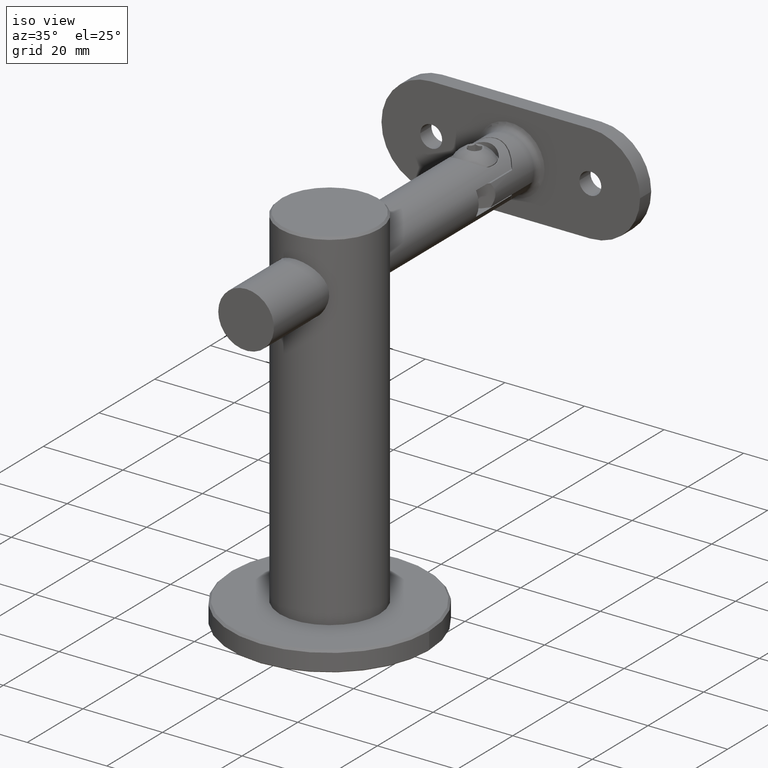
[diagram: clean part render]
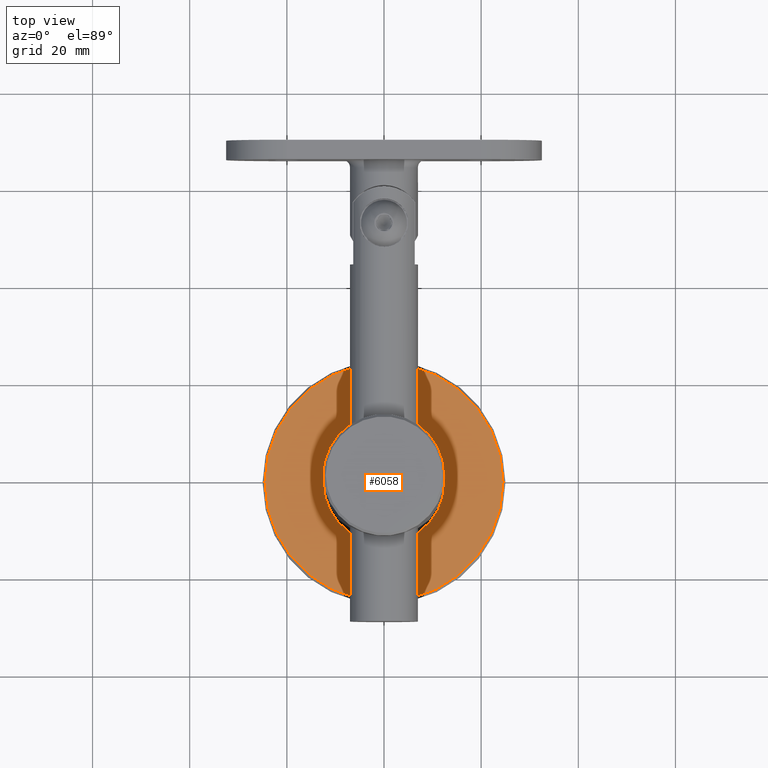
[diagram: tour spotlight — one face highlighted and labeled with its STEP entity id]
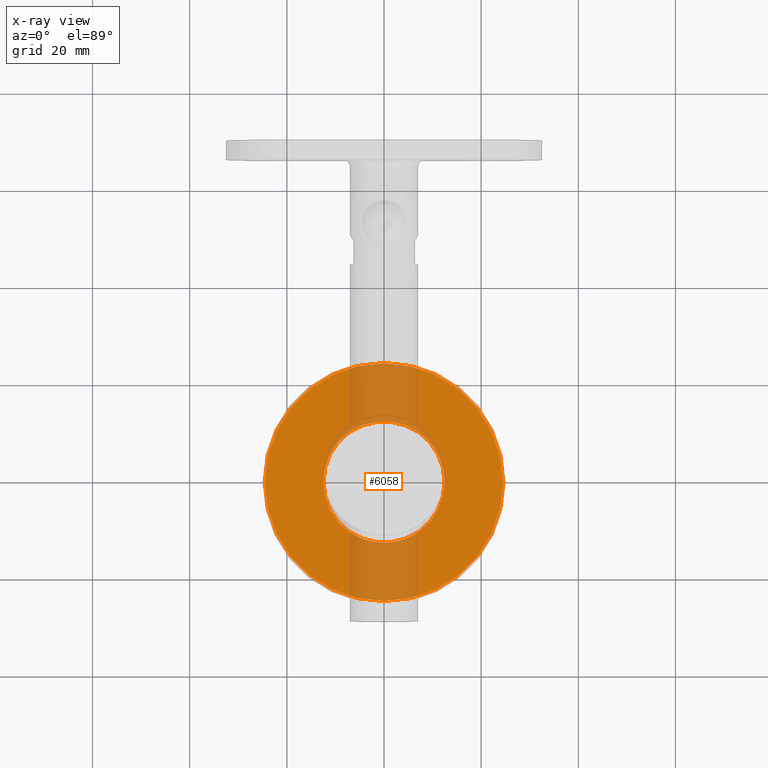
[diagram: x-ray of the same camera — body ghosted, this tour face saturated]
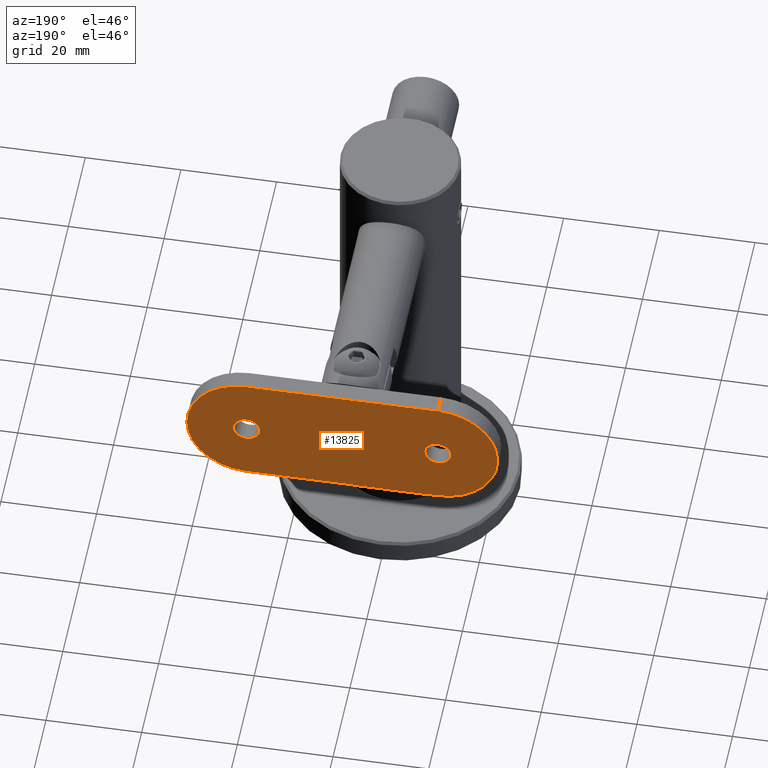
[diagram: tour spotlight — one face highlighted and labeled with its STEP entity id]
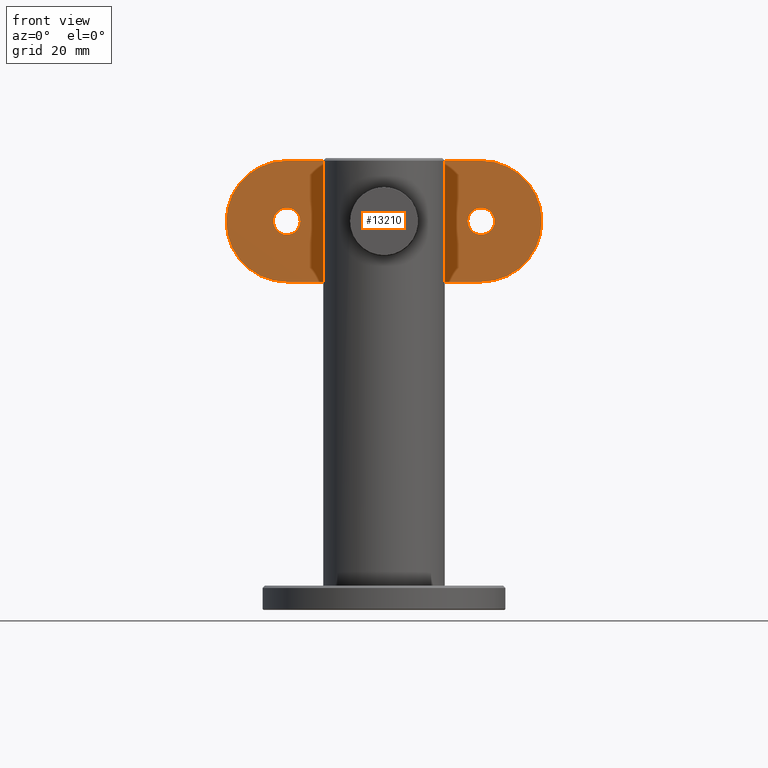
[diagram: tour spotlight — one face highlighted and labeled with its STEP entity id]
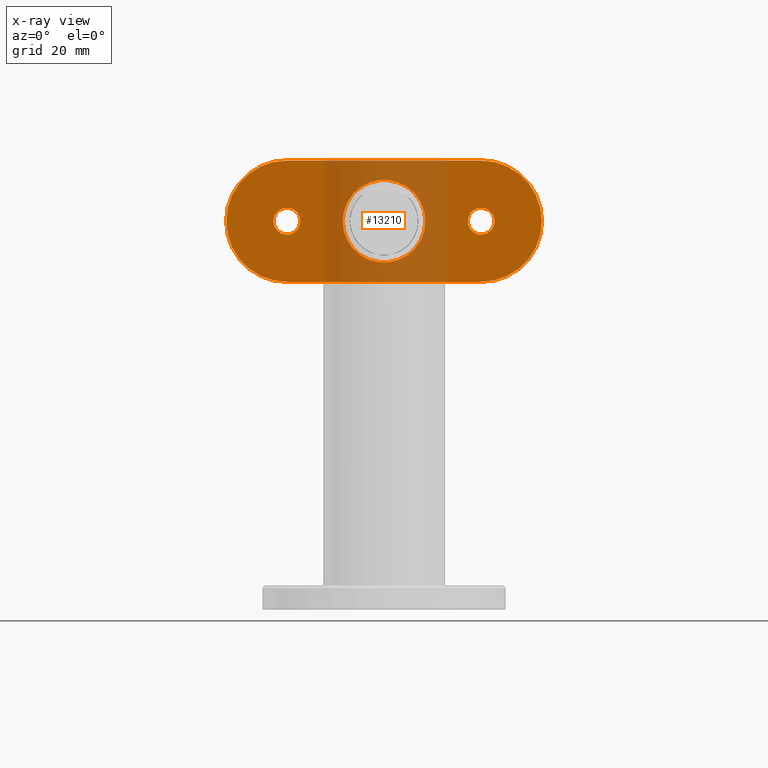
[diagram: x-ray of the same camera — body ghosted, this tour face saturated]
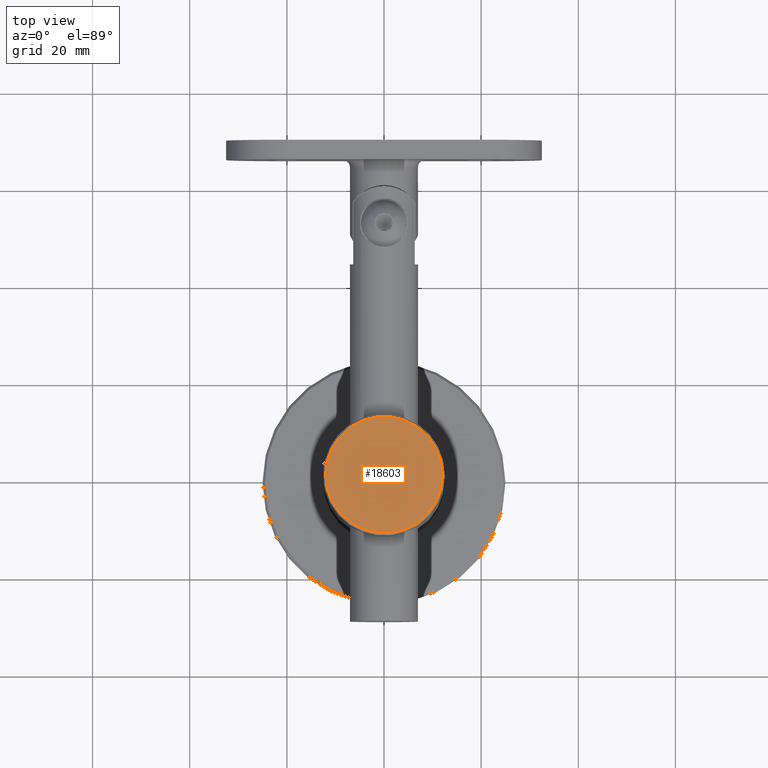
[diagram: tour spotlight — one face highlighted and labeled with its STEP entity id]
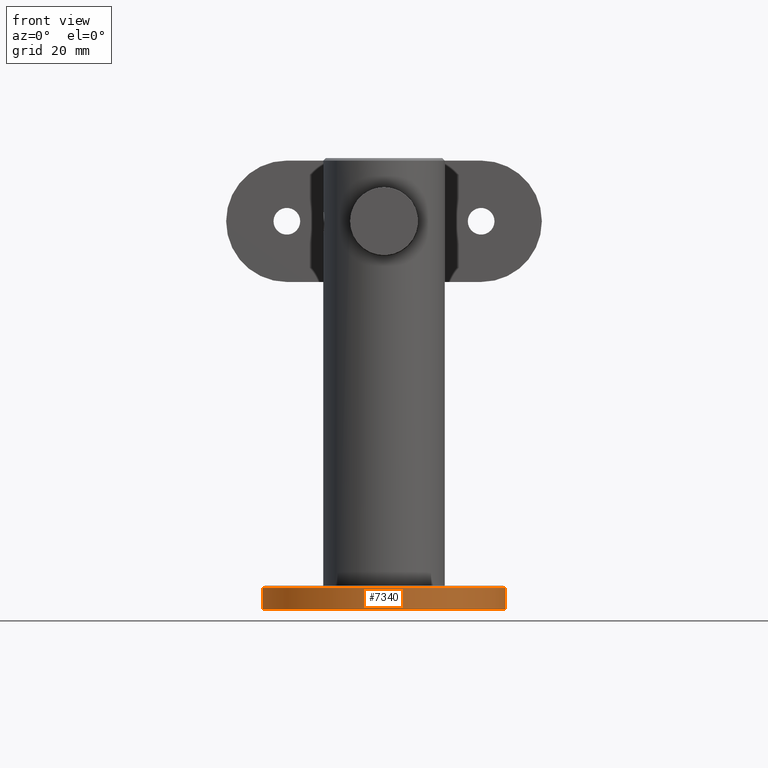
[diagram: tour spotlight — one face highlighted and labeled with its STEP entity id]
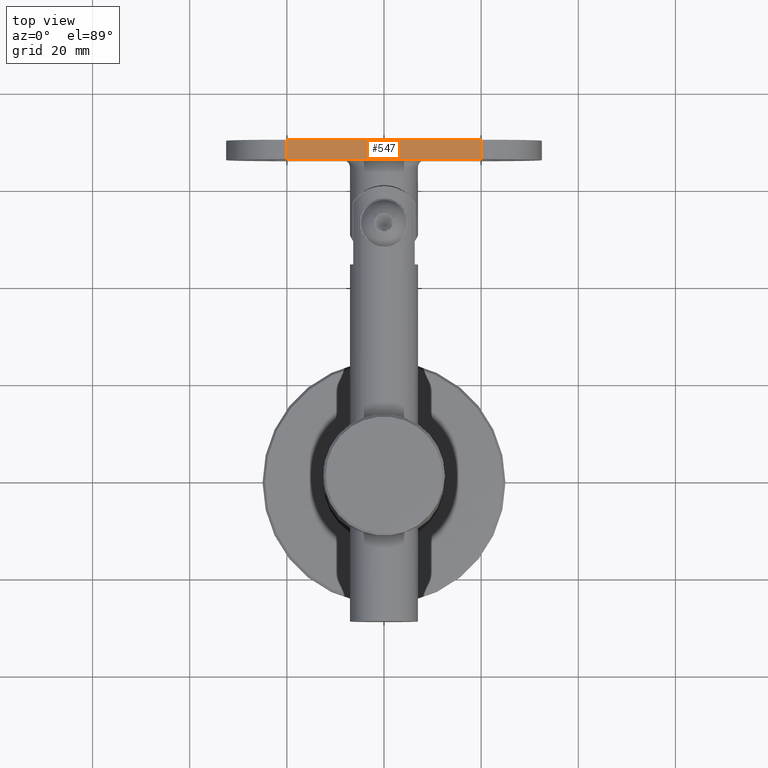
[diagram: tour spotlight — one face highlighted and labeled with its STEP entity id]
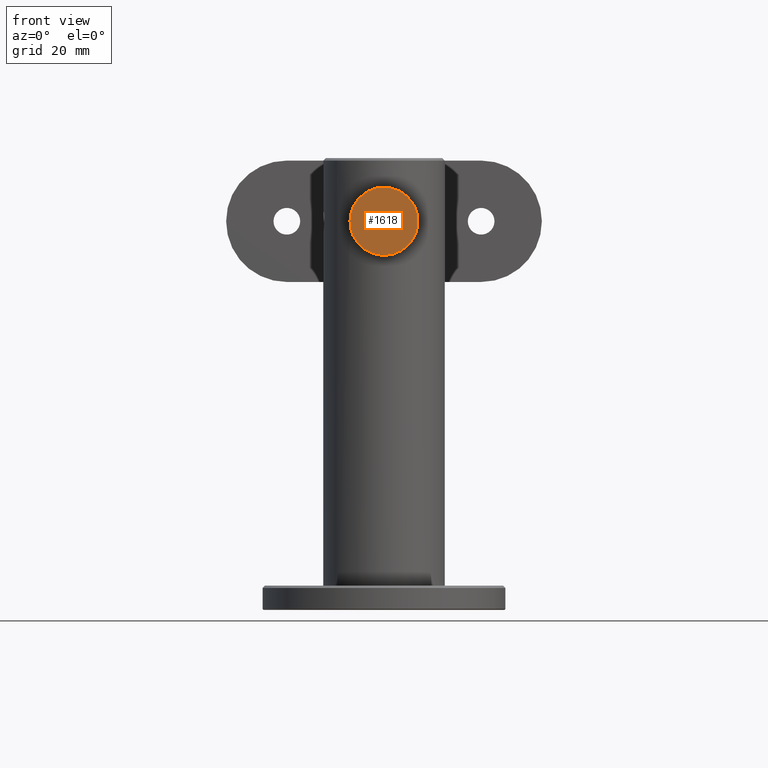
[diagram: tour spotlight — one face highlighted and labeled with its STEP entity id]
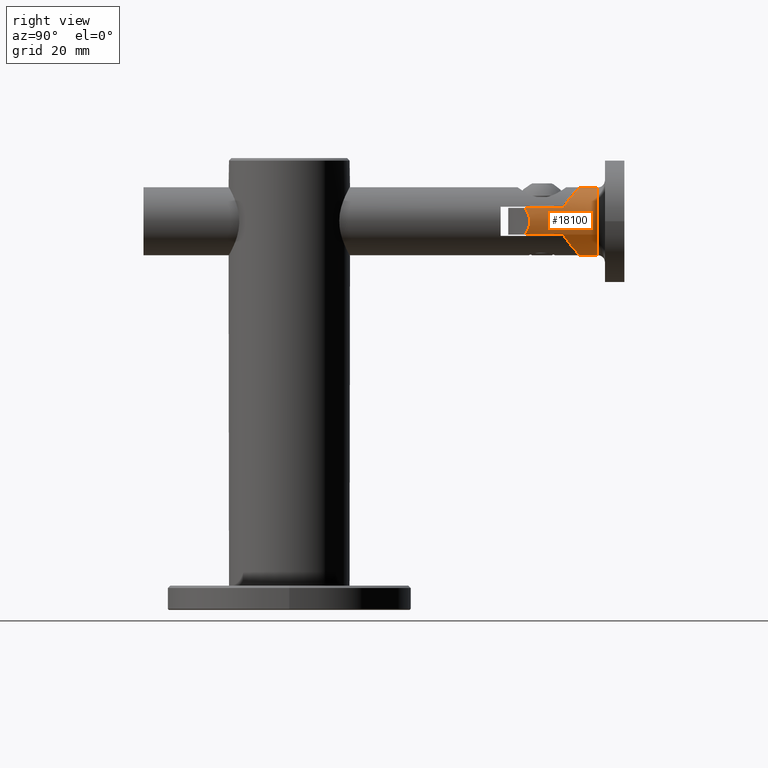
[diagram: tour spotlight — one face highlighted and labeled with its STEP entity id]
A machine part: a face-by-face anatomy tour. The part has 314 B-rep faces; the first image is the clean iso view, then the 8 largest visible faces are spotlighted one at a time (largest first), each with its STEP entity span.

Face 1 — top view, entity #6058. An x-ray twin of the same camera follows (body ghosted, this face saturated) — the face is partly hidden behind the body. In plain terms, the highlighted planar face has unit normal (0, 0, 1).
Definition (entity closure, byte-faithful):
#1257 = FACE_BOUND ( 'NONE', #5096, .T. ) ;
#1678 = CARTESIAN_POINT ( 'NONE',  ( 0.0000000000000000000, 0.0000000000000000000, 5.000000000000004400 ) ) ;
#1976 = ORIENTED_EDGE ( 'NONE', *, *, #12818, .F. ) ;
#3321 = AXIS2_PLACEMENT_3D ( 'NONE', #1678, #13471, #8925 ) ;
#5077 = EDGE_CURVE ( 'NONE', #10716, #10716, #17661, .T. ) ;
#5086 = VERTEX_POINT ( 'NONE', #6688 ) ;
#5096 = EDGE_LOOP ( 'NONE', ( #1976 ) ) ;
#6058 = ADVANCED_FACE ( 'NONE', ( #13690, #1257 ), #10800, .T. ) ;
#6688 = CARTESIAN_POINT ( 'NONE',  ( 12.50000000000000000, 0.0000000000000000000, 5.000000000000004400 ) ) ;
#8709 = CIRCLE ( 'NONE', #3321, 12.50000000000000000 ) ;
#8925 = DIRECTION ( 'NONE',  ( 1.000000000000000000, 0.0000000000000000000, 0.0000000000000000000 ) ) ;
#9427 = DIRECTION ( 'NONE',  ( 1.000000000000000000, 0.0000000000000000000, -0.0000000000000000000 ) ) ;
#9556 = CARTESIAN_POINT ( 'NONE',  ( 0.0000000000000000000, 0.0000000000000000000, 5.000000000000000000 ) ) ;
#9725 = DIRECTION ( 'NONE',  ( 1.000000000000000000, 0.0000000000000000000, 0.0000000000000000000 ) ) ;
#9981 = CARTESIAN_POINT ( 'NONE',  ( 0.0000000000000000000, 0.0000000000000000000, 5.000000000000000000 ) ) ;
#10235 = EDGE_LOOP ( 'NONE', ( #12556 ) ) ;
#10716 = VERTEX_POINT ( 'NONE', #14295 ) ;
#10800 = PLANE ( 'NONE',  #15425 ) ;
#11424 = DIRECTION ( 'NONE',  ( 0.0000000000000000000, 0.0000000000000000000, 1.000000000000000000 ) ) ;
#12556 = ORIENTED_EDGE ( 'NONE', *, *, #5077, .T. ) ;
#12818 = EDGE_CURVE ( 'NONE', #5086, #5086, #8709, .T. ) ;
#13471 = DIRECTION ( 'NONE',  ( 0.0000000000000000000, 0.0000000000000000000, 1.000000000000000000 ) ) ;
#13690 = FACE_OUTER_BOUND ( 'NONE', #10235, .T. ) ;
#14295 = CARTESIAN_POINT ( 'NONE',  ( 24.49999999999998200, 0.0000000000000000000, 5.000000000000000000 ) ) ;
#14680 = AXIS2_PLACEMENT_3D ( 'NONE', #9981, #11424, #9725 ) ;
#15425 = AXIS2_PLACEMENT_3D ( 'NONE', #9556, #16912, #9427 ) ;
#16912 = DIRECTION ( 'NONE',  ( 0.0000000000000000000, 0.0000000000000000000, 1.000000000000000000 ) ) ;
#17661 = CIRCLE ( 'NONE', #14680, 24.49999999999998200 ) ;

Face 2 — auxiliary view, entity #13825. In plain terms, the highlighted planar face has unit normal (-0, -1, -0).
Definition (entity closure, byte-faithful):
#248 = CIRCLE ( 'NONE', #3572, 12.49999999999999600 ) ;
#1141 = AXIS2_PLACEMENT_3D ( 'NONE', #14740, #14675, #2686 ) ;
#1383 = CARTESIAN_POINT ( 'NONE',  ( 12.50000000000000000, 3.999999999999996400, 32.50000000000000000 ) ) ;
#1580 = PLANE ( 'NONE',  #6205 ) ;
#1769 = VERTEX_POINT ( 'NONE', #9964 ) ;
#1872 = VERTEX_POINT ( 'NONE', #12111 ) ;
#2070 = DIRECTION ( 'NONE',  ( -0.0000000000000000000, 1.000000000000000000, -0.0000000000000000000 ) ) ;
#2240 = DIRECTION ( 'NONE',  ( -0.0000000000000000000, -0.0000000000000000000, -1.000000000000000000 ) ) ;
#2686 = DIRECTION ( 'NONE',  ( 8.881784197001252300E-016, 0.0000000000000000000, -1.000000000000000000 ) ) ;
#3122 = ORIENTED_EDGE ( 'NONE', *, *, #15243, .T. ) ;
#3302 = CARTESIAN_POINT ( 'NONE',  ( 0.0000000000000000000, 3.999999999999996400, -20.00000000000000400 ) ) ;
#3572 = AXIS2_PLACEMENT_3D ( 'NONE', #14278, #3664, #18822 ) ;
#3664 = DIRECTION ( 'NONE',  ( -0.0000000000000000000, 1.000000000000000000, -0.0000000000000000000 ) ) ;
#3680 = DIRECTION ( 'NONE',  ( 0.0000000000000000000, 1.000000000000000000, 0.0000000000000000000 ) ) ;
#3715 = ORIENTED_EDGE ( 'NONE', *, *, #5933, .T. ) ;
#3880 = CARTESIAN_POINT ( 'NONE',  ( 4.694321675334250400E-015, 3.999999999999996400, 20.00000000000000000 ) ) ;
#4465 = CARTESIAN_POINT ( 'NONE',  ( -12.50000000000000000, 3.999999999999996400, -20.00000000000000400 ) ) ;
#4577 = EDGE_CURVE ( 'NONE', #1872, #1769, #12747, .T. ) ;
#4677 = ORIENTED_EDGE ( 'NONE', *, *, #14876, .F. ) ;
#4906 = VERTEX_POINT ( 'NONE', #4465 ) ;
#5063 = CARTESIAN_POINT ( 'NONE',  ( -12.50000000000000000, 3.999999999999996400, 32.50000000000000000 ) ) ;
#5432 = CARTESIAN_POINT ( 'NONE',  ( 0.0000000000000000000, 3.999999999999996400, -32.50000000000000000 ) ) ;
#5933 = EDGE_CURVE ( 'NONE', #16187, #4906, #14157, .T. ) ;
#6205 = AXIS2_PLACEMENT_3D ( 'NONE', #1383, #12044, #15010 ) ;
#6274 = VERTEX_POINT ( 'NONE', #17282 ) ;
#6496 = DIRECTION ( 'NONE',  ( -0.0000000000000000000, 1.000000000000000000, -0.0000000000000000000 ) ) ;
#6565 = DIRECTION ( 'NONE',  ( 0.0000000000000000000, 0.0000000000000000000, -1.000000000000000000 ) ) ;
#6571 = DIRECTION ( 'NONE',  ( -0.0000000000000000000, -0.0000000000000000000, -1.000000000000000000 ) ) ;
#6577 = VERTEX_POINT ( 'NONE', #17777 ) ;
#7313 = ORIENTED_EDGE ( 'NONE', *, *, #10455, .F. ) ;
#7444 = EDGE_CURVE ( 'NONE', #16671, #1872, #11285, .T. ) ;
#7879 = CARTESIAN_POINT ( 'NONE',  ( 4.694321675334250400E-015, 3.999999999999996400, -20.00000000000000000 ) ) ;
#8321 = CARTESIAN_POINT ( 'NONE',  ( 4.694321675334250400E-015, 3.999999999999996400, 22.75000000000000000 ) ) ;
#8667 = CIRCLE ( 'NONE', #12222, 2.749999999999999100 ) ;
#8765 = VECTOR ( 'NONE', #2240, 1000.000000000000000 ) ;
#9258 = ORIENTED_EDGE ( 'NONE', *, *, #16749, .T. ) ;
#9336 = AXIS2_PLACEMENT_3D ( 'NONE', #18467, #2070, #6565 ) ;
#9465 = EDGE_LOOP ( 'NONE', ( #10498 ) ) ;
#9837 = FACE_OUTER_BOUND ( 'NONE', #16332, .T. ) ;
#9964 = CARTESIAN_POINT ( 'NONE',  ( 12.50000000000000000, 3.999999999999996400, -20.00000000000000400 ) ) ;
#9996 = VERTEX_POINT ( 'NONE', #8321 ) ;
#10254 = AXIS2_PLACEMENT_3D ( 'NONE', #3302, #6496, #18457 ) ;
#10455 = EDGE_CURVE ( 'NONE', #6577, #4906, #17872, .T. ) ;
#10498 = ORIENTED_EDGE ( 'NONE', *, *, #14487, .F. ) ;
#11285 = CIRCLE ( 'NONE', #9336, 12.50000000000000000 ) ;
#11595 = DIRECTION ( 'NONE',  ( 0.0000000000000000000, 0.0000000000000000000, 1.000000000000000000 ) ) ;
#11638 = ORIENTED_EDGE ( 'NONE', *, *, #4577, .T. ) ;
#11721 = CARTESIAN_POINT ( 'NONE',  ( 12.50000000000000000, 3.999999999999996400, 32.50000000000000000 ) ) ;
#11787 = ORIENTED_EDGE ( 'NONE', *, *, #7444, .T. ) ;
#12044 = DIRECTION ( 'NONE',  ( 0.0000000000000000000, -1.000000000000000000, 0.0000000000000000000 ) ) ;
#12111 = CARTESIAN_POINT ( 'NONE',  ( 12.50000000000000000, 3.999999999999996400, 20.00000000000000000 ) ) ;
#12222 = AXIS2_PLACEMENT_3D ( 'NONE', #7879, #3680, #15720 ) ;
#12747 = LINE ( 'NONE', #11721, #8765 ) ;
#13221 = CARTESIAN_POINT ( 'NONE',  ( 0.0000000000000000000, 3.999999999999996400, 32.50000000000000000 ) ) ;
#13635 = FACE_BOUND ( 'NONE', #16362, .T. ) ;
#13825 = ADVANCED_FACE ( 'NONE', ( #13635, #17342, #9837 ), #1580, .F. ) ;
#14157 = CIRCLE ( 'NONE', #10254, 12.49999999999999600 ) ;
#14278 = CARTESIAN_POINT ( 'NONE',  ( 0.0000000000000000000, 3.999999999999996400, -20.00000000000000400 ) ) ;
#14378 = DIRECTION ( 'NONE',  ( 0.0000000000000000000, 1.000000000000000000, 0.0000000000000000000 ) ) ;
#14487 = EDGE_CURVE ( 'NONE', #6274, #6274, #8667, .T. ) ;
#14675 = DIRECTION ( 'NONE',  ( -0.0000000000000000000, 1.000000000000000000, -0.0000000000000000000 ) ) ;
#14740 = CARTESIAN_POINT ( 'NONE',  ( 0.0000000000000000000, 3.999999999999996400, 20.00000000000000000 ) ) ;
#14785 = CIRCLE ( 'NONE', #16630, 2.749999999999999100 ) ;
#14876 = EDGE_CURVE ( 'NONE', #9996, #9996, #14785, .T. ) ;
#15010 = DIRECTION ( 'NONE',  ( 0.0000000000000000000, -0.0000000000000000000, -1.000000000000000000 ) ) ;
#15243 = EDGE_CURVE ( 'NONE', #1769, #16187, #248, .T. ) ;
#15720 = DIRECTION ( 'NONE',  ( 0.0000000000000000000, 0.0000000000000000000, 1.000000000000000000 ) ) ;
#15780 = VECTOR ( 'NONE', #6571, 1000.000000000000000 ) ;
#16187 = VERTEX_POINT ( 'NONE', #5432 ) ;
#16332 = EDGE_LOOP ( 'NONE', ( #7313, #9258, #11787, #11638, #3122, #3715 ) ) ;
#16362 = EDGE_LOOP ( 'NONE', ( #4677 ) ) ;
#16630 = AXIS2_PLACEMENT_3D ( 'NONE', #3880, #14378, #11595 ) ;
#16663 = CIRCLE ( 'NONE', #1141, 12.50000000000000000 ) ;
#16671 = VERTEX_POINT ( 'NONE', #13221 ) ;
#16749 = EDGE_CURVE ( 'NONE', #6577, #16671, #16663, .T. ) ;
#17282 = CARTESIAN_POINT ( 'NONE',  ( 4.694321675334250400E-015, 3.999999999999996400, -17.25000000000000000 ) ) ;
#17342 = FACE_BOUND ( 'NONE', #9465, .T. ) ;
#17777 = CARTESIAN_POINT ( 'NONE',  ( -12.50000000000000000, 3.999999999999996400, 20.00000000000000000 ) ) ;
#17872 = LINE ( 'NONE', #5063, #15780 ) ;
#18457 = DIRECTION ( 'NONE',  ( 0.0000000000000000000, 0.0000000000000000000, -1.000000000000000000 ) ) ;
#18467 = CARTESIAN_POINT ( 'NONE',  ( 0.0000000000000000000, 3.999999999999996400, 20.00000000000000000 ) ) ;
#18822 = DIRECTION ( 'NONE',  ( 0.0000000000000000000, 0.0000000000000000000, -1.000000000000000000 ) ) ;

Face 3 — front view, entity #13210. An x-ray twin of the same camera follows (body ghosted, this face saturated) — the face is partly hidden behind the body. In plain terms, the highlighted planar face has unit normal (0, 1, 0).
Definition (entity closure, byte-faithful):
#264 = FACE_BOUND ( 'NONE', #18108, .T. ) ;
#389 = CARTESIAN_POINT ( 'NONE',  ( 12.50000000000000000, -3.370833141065685400E-015, -20.00000000000000400 ) ) ;
#474 = CARTESIAN_POINT ( 'NONE',  ( 0.0000000000000000000, -3.370833141065685400E-015, 20.00000000000000000 ) ) ;
#583 = DIRECTION ( 'NONE',  ( 0.0000000000000000000, 0.0000000000000000000, 1.000000000000000000 ) ) ;
#631 = CIRCLE ( 'NONE', #17145, 12.50000000000000000 ) ;
#927 = DIRECTION ( 'NONE',  ( 0.0000000000000000000, 1.000000000000000000, -0.0000000000000000000 ) ) ;
#1111 = DIRECTION ( 'NONE',  ( -0.0000000000000000000, -0.0000000000000000000, -1.000000000000000000 ) ) ;
#1168 = EDGE_CURVE ( 'NONE', #10453, #19440, #6251, .T. ) ;
#1341 = ORIENTED_EDGE ( 'NONE', *, *, #3212, .T. ) ;
#1417 = EDGE_CURVE ( 'NONE', #4656, #12461, #3228, .T. ) ;
#1622 = CIRCLE ( 'NONE', #6549, 8.500000000000000000 ) ;
#1773 = EDGE_CURVE ( 'NONE', #12525, #5236, #631, .T. ) ;
#1936 = DIRECTION ( 'NONE',  ( 0.0000000000000000000, 0.0000000000000000000, 1.000000000000000000 ) ) ;
#2372 = CIRCLE ( 'NONE', #15621, 12.50000000000000000 ) ;
#2707 = CARTESIAN_POINT ( 'NONE',  ( 12.50000000000000000, -3.370833141065685400E-015, 32.50000000000000000 ) ) ;
#3095 = FACE_BOUND ( 'NONE', #12256, .T. ) ;
#3212 = EDGE_CURVE ( 'NONE', #18898, #18898, #7398, .T. ) ;
#3228 = LINE ( 'NONE', #2707, #15401 ) ;
#3617 = CARTESIAN_POINT ( 'NONE',  ( -12.50000000000000000, -3.370833141065685400E-015, 32.50000000000000000 ) ) ;
#4083 = EDGE_LOOP ( 'NONE', ( #1341 ) ) ;
#4190 = CARTESIAN_POINT ( 'NONE',  ( -12.50000000000000000, -3.370833141065685400E-015, -20.00000000000000400 ) ) ;
#4497 = FACE_OUTER_BOUND ( 'NONE', #9397, .T. ) ;
#4548 = EDGE_CURVE ( 'NONE', #5236, #12461, #12528, .T. ) ;
#4656 = VERTEX_POINT ( 'NONE', #7141 ) ;
#5109 = DIRECTION ( 'NONE',  ( -0.0000000000000000000, -0.0000000000000000000, -1.000000000000000000 ) ) ;
#5231 = DIRECTION ( 'NONE',  ( -0.0000000000000000000, -1.000000000000000000, 0.0000000000000000000 ) ) ;
#5236 = VERTEX_POINT ( 'NONE', #10037 ) ;
#5556 = ORIENTED_EDGE ( 'NONE', *, *, #17591, .T. ) ;
#5698 = CARTESIAN_POINT ( 'NONE',  ( 0.0000000000000000000, -3.469446951953614200E-015, -20.00000000000000400 ) ) ;
#6087 = EDGE_CURVE ( 'NONE', #19440, #12525, #9451, .T. ) ;
#6166 = ORIENTED_EDGE ( 'NONE', *, *, #1417, .F. ) ;
#6251 = CIRCLE ( 'NONE', #14270, 12.50000000000000000 ) ;
#6373 = AXIS2_PLACEMENT_3D ( 'NONE', #14016, #17315, #15691 ) ;
#6549 = AXIS2_PLACEMENT_3D ( 'NONE', #9669, #9601, #18184 ) ;
#7141 = CARTESIAN_POINT ( 'NONE',  ( 12.50000000000000000, -3.370833141065685400E-015, 20.00000000000000000 ) ) ;
#7398 = CIRCLE ( 'NONE', #6373, 2.749999999999999100 ) ;
#7676 = ORIENTED_EDGE ( 'NONE', *, *, #1168, .T. ) ;
#8648 = ORIENTED_EDGE ( 'NONE', *, *, #15594, .T. ) ;
#9317 = AXIS2_PLACEMENT_3D ( 'NONE', #11670, #927, #17552 ) ;
#9397 = EDGE_LOOP ( 'NONE', ( #12421, #7676, #17098, #9651, #10608, #6166 ) ) ;
#9451 = LINE ( 'NONE', #3617, #12728 ) ;
#9538 = CARTESIAN_POINT ( 'NONE',  ( 0.0000000000000000000, -3.370833141065685400E-015, 20.00000000000000000 ) ) ;
#9565 = DIRECTION ( 'NONE',  ( -0.0000000000000000000, -1.000000000000000000, 0.0000000000000000000 ) ) ;
#9601 = DIRECTION ( 'NONE',  ( 0.0000000000000000000, 1.000000000000000000, -0.0000000000000000000 ) ) ;
#9651 = ORIENTED_EDGE ( 'NONE', *, *, #1773, .T. ) ;
#9669 = CARTESIAN_POINT ( 'NONE',  ( 0.0000000000000000000, -3.469446951953614200E-015, 0.0000000000000000000 ) ) ;
#10037 = CARTESIAN_POINT ( 'NONE',  ( 0.0000000000000000000, -3.370833141065685400E-015, -32.50000000000000000 ) ) ;
#10091 = CARTESIAN_POINT ( 'NONE',  ( 0.0000000000000000000, -3.469446951953614200E-015, -20.00000000000000400 ) ) ;
#10335 = FACE_BOUND ( 'NONE', #4083, .T. ) ;
#10453 = VERTEX_POINT ( 'NONE', #12653 ) ;
#10608 = ORIENTED_EDGE ( 'NONE', *, *, #4548, .T. ) ;
#10807 = CARTESIAN_POINT ( 'NONE',  ( -12.50000000000000000, -3.370833141065685400E-015, 20.00000000000000000 ) ) ;
#10831 = DIRECTION ( 'NONE',  ( 0.0000000000000000000, 0.0000000000000000000, 1.000000000000000000 ) ) ;
#10915 = DIRECTION ( 'NONE',  ( -0.0000000000000000000, -1.000000000000000000, 0.0000000000000000000 ) ) ;
#11250 = CARTESIAN_POINT ( 'NONE',  ( 0.0000000000000000000, -3.469446951953614200E-015, 8.500000000000000000 ) ) ;
#11323 = CARTESIAN_POINT ( 'NONE',  ( 4.694321675334250400E-015, -3.469446951953614200E-015, 22.75000000000000000 ) ) ;
#11670 = CARTESIAN_POINT ( 'NONE',  ( 12.50000000000000000, -3.370833141065685400E-015, 32.50000000000000000 ) ) ;
#12256 = EDGE_LOOP ( 'NONE', ( #5556 ) ) ;
#12363 = VERTEX_POINT ( 'NONE', #11250 ) ;
#12421 = ORIENTED_EDGE ( 'NONE', *, *, #14101, .T. ) ;
#12461 = VERTEX_POINT ( 'NONE', #389 ) ;
#12525 = VERTEX_POINT ( 'NONE', #4190 ) ;
#12528 = CIRCLE ( 'NONE', #17042, 12.50000000000000000 ) ;
#12653 = CARTESIAN_POINT ( 'NONE',  ( 0.0000000000000000000, -3.370833141065685400E-015, 32.50000000000000000 ) ) ;
#12728 = VECTOR ( 'NONE', #5109, 1000.000000000000000 ) ;
#13125 = DIRECTION ( 'NONE',  ( -0.0000000000000000000, -1.000000000000000000, 0.0000000000000000000 ) ) ;
#13210 = ADVANCED_FACE ( 'NONE', ( #3095, #264, #10335, #4497 ), #18791, .F. ) ;
#13794 = VERTEX_POINT ( 'NONE', #11323 ) ;
#14016 = CARTESIAN_POINT ( 'NONE',  ( 4.694321675334250400E-015, -3.469446951953614200E-015, -20.00000000000000000 ) ) ;
#14101 = EDGE_CURVE ( 'NONE', #4656, #10453, #2372, .T. ) ;
#14228 = DIRECTION ( 'NONE',  ( 0.0000000000000000000, 0.0000000000000000000, 1.000000000000000000 ) ) ;
#14270 = AXIS2_PLACEMENT_3D ( 'NONE', #474, #9565, #1936 ) ;
#15401 = VECTOR ( 'NONE', #1111, 1000.000000000000000 ) ;
#15594 = EDGE_CURVE ( 'NONE', #13794, #13794, #17811, .T. ) ;
#15621 = AXIS2_PLACEMENT_3D ( 'NONE', #9538, #10915, #583 ) ;
#15691 = DIRECTION ( 'NONE',  ( 0.0000000000000000000, 0.0000000000000000000, 1.000000000000000000 ) ) ;
#15872 = AXIS2_PLACEMENT_3D ( 'NONE', #16812, #18036, #10831 ) ;
#16139 = DIRECTION ( 'NONE',  ( 8.881784197001252300E-016, 0.0000000000000000000, 1.000000000000000000 ) ) ;
#16812 = CARTESIAN_POINT ( 'NONE',  ( 4.694321675334250400E-015, -3.469446951953614200E-015, 20.00000000000000000 ) ) ;
#16855 = CARTESIAN_POINT ( 'NONE',  ( 4.694321675334250400E-015, -3.469446951953614200E-015, -17.25000000000000000 ) ) ;
#17042 = AXIS2_PLACEMENT_3D ( 'NONE', #5698, #5231, #14228 ) ;
#17098 = ORIENTED_EDGE ( 'NONE', *, *, #6087, .T. ) ;
#17145 = AXIS2_PLACEMENT_3D ( 'NONE', #10091, #13125, #16139 ) ;
#17315 = DIRECTION ( 'NONE',  ( 0.0000000000000000000, 1.000000000000000000, 0.0000000000000000000 ) ) ;
#17552 = DIRECTION ( 'NONE',  ( 0.0000000000000000000, 0.0000000000000000000, 1.000000000000000000 ) ) ;
#17591 = EDGE_CURVE ( 'NONE', #12363, #12363, #1622, .T. ) ;
#17811 = CIRCLE ( 'NONE', #15872, 2.749999999999999100 ) ;
#18036 = DIRECTION ( 'NONE',  ( 0.0000000000000000000, 1.000000000000000000, 0.0000000000000000000 ) ) ;
#18108 = EDGE_LOOP ( 'NONE', ( #8648 ) ) ;
#18184 = DIRECTION ( 'NONE',  ( 0.0000000000000000000, 0.0000000000000000000, 1.000000000000000000 ) ) ;
#18791 = PLANE ( 'NONE',  #9317 ) ;
#18898 = VERTEX_POINT ( 'NONE', #16855 ) ;
#19440 = VERTEX_POINT ( 'NONE', #10807 ) ;

Face 4 — top view, entity #18603. In plain terms, the highlighted planar face has unit normal (0, 0, -1).
Definition (entity closure, byte-faithful):
#1010 = CIRCLE ( 'NONE', #17656, 11.99999999999992400 ) ;
#1556 = ORIENTED_EDGE ( 'NONE', *, *, #5705, .T. ) ;
#2789 = CARTESIAN_POINT ( 'NONE',  ( 0.0000000000000000000, 0.0000000000000000000, 93.00000000000000000 ) ) ;
#3622 = DIRECTION ( 'NONE',  ( -1.000000000000000000, 0.0000000000000000000, -0.0000000000000000000 ) ) ;
#4989 = CARTESIAN_POINT ( 'NONE',  ( 0.0000000000000000000, 0.0000000000000000000, 93.00000000000000000 ) ) ;
#5705 = EDGE_CURVE ( 'NONE', #6510, #6510, #1010, .T. ) ;
#6370 = PLANE ( 'NONE',  #17633 ) ;
#6510 = VERTEX_POINT ( 'NONE', #11388 ) ;
#8616 = FACE_OUTER_BOUND ( 'NONE', #9145, .T. ) ;
#9145 = EDGE_LOOP ( 'NONE', ( #1556 ) ) ;
#11388 = CARTESIAN_POINT ( 'NONE',  ( -11.99999999999992400, 0.0000000000000000000, 93.00000000000000000 ) ) ;
#13319 = DIRECTION ( 'NONE',  ( -1.000000000000000000, 0.0000000000000000000, 0.0000000000000000000 ) ) ;
#14776 = DIRECTION ( 'NONE',  ( -0.0000000000000000000, -0.0000000000000000000, 1.000000000000000000 ) ) ;
#16853 = DIRECTION ( 'NONE',  ( 0.0000000000000000000, 0.0000000000000000000, -1.000000000000000000 ) ) ;
#17633 = AXIS2_PLACEMENT_3D ( 'NONE', #4989, #16853, #3622 ) ;
#17656 = AXIS2_PLACEMENT_3D ( 'NONE', #2789, #14776, #13319 ) ;
#18603 = ADVANCED_FACE ( 'NONE', ( #8616 ), #6370, .F. ) ;

Face 5 — front view, entity #7340. In plain terms, the highlighted cylindrical surface (bore or boss wall) has radius 25 mm, axis along (-0, -0, -1).
Definition (entity closure, byte-faithful):
#13 = EDGE_LOOP ( 'NONE', ( #4357 ) ) ;
#633 = EDGE_CURVE ( 'NONE', #1585, #1585, #8570, .T. ) ;
#756 = CYLINDRICAL_SURFACE ( 'NONE', #12735, 25.00000000000000000 ) ;
#880 = CARTESIAN_POINT ( 'NONE',  ( 0.0000000000000000000, 0.0000000000000000000, 4.499999999999971600 ) ) ;
#1585 = VERTEX_POINT ( 'NONE', #13850 ) ;
#2173 = AXIS2_PLACEMENT_3D ( 'NONE', #8556, #5543, #7045 ) ;
#3360 = FACE_OUTER_BOUND ( 'NONE', #13, .T. ) ;
#3629 = CARTESIAN_POINT ( 'NONE',  ( 0.0000000000000000000, 0.0000000000000000000, 5.000000000000000000 ) ) ;
#3745 = CARTESIAN_POINT ( 'NONE',  ( 25.00000000000000000, 0.0000000000000000000, 0.1999999999999883800 ) ) ;
#4357 = ORIENTED_EDGE ( 'NONE', *, *, #17721, .T. ) ;
#5543 = DIRECTION ( 'NONE',  ( -0.0000000000000000000, -0.0000000000000000000, 1.000000000000000000 ) ) ;
#6723 = EDGE_LOOP ( 'NONE', ( #17778 ) ) ;
#7045 = DIRECTION ( 'NONE',  ( 1.000000000000000000, 0.0000000000000000000, 0.0000000000000000000 ) ) ;
#7340 = ADVANCED_FACE ( 'NONE', ( #3360, #8942 ), #756, .T. ) ;
#8556 = CARTESIAN_POINT ( 'NONE',  ( 0.0000000000000000000, 0.0000000000000000000, 0.1999999999999883800 ) ) ;
#8570 = CIRCLE ( 'NONE', #18260, 25.00000000000000000 ) ;
#8942 = FACE_OUTER_BOUND ( 'NONE', #6723, .T. ) ;
#11352 = DIRECTION ( 'NONE',  ( 1.000000000000000000, 0.0000000000000000000, 0.0000000000000000000 ) ) ;
#12735 = AXIS2_PLACEMENT_3D ( 'NONE', #3629, #15673, #18408 ) ;
#13850 = CARTESIAN_POINT ( 'NONE',  ( 25.00000000000000000, 0.0000000000000000000, 4.499999999999971600 ) ) ;
#14272 = CIRCLE ( 'NONE', #2173, 25.00000000000000000 ) ;
#15673 = DIRECTION ( 'NONE',  ( -0.0000000000000000000, -0.0000000000000000000, -1.000000000000000000 ) ) ;
#15819 = DIRECTION ( 'NONE',  ( 0.0000000000000000000, 0.0000000000000000000, -1.000000000000000000 ) ) ;
#16102 = VERTEX_POINT ( 'NONE', #3745 ) ;
#17721 = EDGE_CURVE ( 'NONE', #16102, #16102, #14272, .T. ) ;
#17778 = ORIENTED_EDGE ( 'NONE', *, *, #633, .T. ) ;
#18260 = AXIS2_PLACEMENT_3D ( 'NONE', #880, #15819, #11352 ) ;
#18408 = DIRECTION ( 'NONE',  ( -1.000000000000000000, 0.0000000000000000000, 0.0000000000000000000 ) ) ;

Face 6 — top view, entity #547. In plain terms, the highlighted planar face has unit normal (0, 0, -1).
Definition (entity closure, byte-faithful):
#150 = DIRECTION ( 'NONE',  ( 0.0000000000000000000, 1.000000000000000000, 0.0000000000000000000 ) ) ;
#389 = CARTESIAN_POINT ( 'NONE',  ( 12.50000000000000000, -3.370833141065685400E-015, -20.00000000000000400 ) ) ;
#473 = DIRECTION ( 'NONE',  ( -0.0000000000000000000, -1.000000000000000000, -0.0000000000000000000 ) ) ;
#547 = ADVANCED_FACE ( 'NONE', ( #10669 ), #12418, .F. ) ;
#1111 = DIRECTION ( 'NONE',  ( -0.0000000000000000000, -0.0000000000000000000, -1.000000000000000000 ) ) ;
#1417 = EDGE_CURVE ( 'NONE', #4656, #12461, #3228, .T. ) ;
#1769 = VERTEX_POINT ( 'NONE', #9964 ) ;
#1872 = VERTEX_POINT ( 'NONE', #12111 ) ;
#2221 = AXIS2_PLACEMENT_3D ( 'NONE', #13874, #12545, #6332 ) ;
#2240 = DIRECTION ( 'NONE',  ( -0.0000000000000000000, -0.0000000000000000000, -1.000000000000000000 ) ) ;
#2707 = CARTESIAN_POINT ( 'NONE',  ( 12.50000000000000000, -3.370833141065685400E-015, 32.50000000000000000 ) ) ;
#3053 = EDGE_CURVE ( 'NONE', #12461, #1769, #5039, .T. ) ;
#3228 = LINE ( 'NONE', #2707, #15401 ) ;
#4577 = EDGE_CURVE ( 'NONE', #1872, #1769, #12747, .T. ) ;
#4656 = VERTEX_POINT ( 'NONE', #7141 ) ;
#5039 = LINE ( 'NONE', #18225, #18854 ) ;
#6332 = DIRECTION ( 'NONE',  ( 0.0000000000000000000, 0.0000000000000000000, 1.000000000000000000 ) ) ;
#6955 = ORIENTED_EDGE ( 'NONE', *, *, #4577, .F. ) ;
#7141 = CARTESIAN_POINT ( 'NONE',  ( 12.50000000000000000, -3.370833141065685400E-015, 20.00000000000000000 ) ) ;
#7957 = ORIENTED_EDGE ( 'NONE', *, *, #3053, .T. ) ;
#8765 = VECTOR ( 'NONE', #2240, 1000.000000000000000 ) ;
#8859 = EDGE_CURVE ( 'NONE', #1872, #4656, #10334, .T. ) ;
#9365 = CARTESIAN_POINT ( 'NONE',  ( 12.50000000000000000, 3.999999999999996400, 20.00000000000000000 ) ) ;
#9964 = CARTESIAN_POINT ( 'NONE',  ( 12.50000000000000000, 3.999999999999996400, -20.00000000000000400 ) ) ;
#10098 = VECTOR ( 'NONE', #473, 1000.000000000000000 ) ;
#10334 = LINE ( 'NONE', #9365, #10098 ) ;
#10591 = ORIENTED_EDGE ( 'NONE', *, *, #1417, .T. ) ;
#10669 = FACE_OUTER_BOUND ( 'NONE', #16429, .T. ) ;
#11721 = CARTESIAN_POINT ( 'NONE',  ( 12.50000000000000000, 3.999999999999996400, 32.50000000000000000 ) ) ;
#12111 = CARTESIAN_POINT ( 'NONE',  ( 12.50000000000000000, 3.999999999999996400, 20.00000000000000000 ) ) ;
#12418 = PLANE ( 'NONE',  #2221 ) ;
#12461 = VERTEX_POINT ( 'NONE', #389 ) ;
#12545 = DIRECTION ( 'NONE',  ( -1.000000000000000000, 0.0000000000000000000, 0.0000000000000000000 ) ) ;
#12747 = LINE ( 'NONE', #11721, #8765 ) ;
#13874 = CARTESIAN_POINT ( 'NONE',  ( 12.50000000000000000, 3.999999999999996400, 32.50000000000000000 ) ) ;
#15401 = VECTOR ( 'NONE', #1111, 1000.000000000000000 ) ;
#16429 = EDGE_LOOP ( 'NONE', ( #6955, #18066, #10591, #7957 ) ) ;
#18066 = ORIENTED_EDGE ( 'NONE', *, *, #8859, .T. ) ;
#18225 = CARTESIAN_POINT ( 'NONE',  ( 12.50000000000000000, 3.999999999999996400, -20.00000000000000400 ) ) ;
#18854 = VECTOR ( 'NONE', #150, 1000.000000000000000 ) ;

Face 7 — front view, entity #1618. In plain terms, the highlighted planar face has unit normal (0, 1, 0).
Definition (entity closure, byte-faithful):
#324 = CIRCLE ( 'NONE', #14048, 6.999999999999999100 ) ;
#1096 = FACE_OUTER_BOUND ( 'NONE', #7278, .T. ) ;
#1618 = ADVANCED_FACE ( 'NONE', ( #1096 ), #12865, .F. ) ;
#2209 = CARTESIAN_POINT ( 'NONE',  ( 0.0000000000000000000, 0.0000000000000000000, 0.0000000000000000000 ) ) ;
#4898 = DIRECTION ( 'NONE',  ( 0.0000000000000000000, 0.0000000000000000000, 1.000000000000000000 ) ) ;
#4930 = EDGE_CURVE ( 'NONE', #17274, #17274, #324, .T. ) ;
#5852 = AXIS2_PLACEMENT_3D ( 'NONE', #2209, #6835, #6774 ) ;
#6774 = DIRECTION ( 'NONE',  ( 0.0000000000000000000, -0.0000000000000000000, 1.000000000000000000 ) ) ;
#6835 = DIRECTION ( 'NONE',  ( 0.0000000000000000000, 1.000000000000000000, 0.0000000000000000000 ) ) ;
#7278 = EDGE_LOOP ( 'NONE', ( #19206 ) ) ;
#9098 = CARTESIAN_POINT ( 'NONE',  ( 0.0000000000000000000, 0.0000000000000000000, 0.0000000000000000000 ) ) ;
#11192 = CARTESIAN_POINT ( 'NONE',  ( 0.0000000000000000000, 0.0000000000000000000, 6.999999999999999100 ) ) ;
#12865 = PLANE ( 'NONE',  #5852 ) ;
#13889 = DIRECTION ( 'NONE',  ( 0.0000000000000000000, 1.000000000000000000, 0.0000000000000000000 ) ) ;
#14048 = AXIS2_PLACEMENT_3D ( 'NONE', #9098, #13889, #4898 ) ;
#17274 = VERTEX_POINT ( 'NONE', #11192 ) ;
#19206 = ORIENTED_EDGE ( 'NONE', *, *, #4930, .F. ) ;

Face 8 — right view, entity #18100. In plain terms, the highlighted cylindrical surface (bore or boss wall) has radius 7 mm, axis along (-0, -1, -0).
Definition (entity closure, byte-faithful):
#137 = CARTESIAN_POINT ( 'NONE',  ( -1.240183109576202600, -15.71351514762060100, -6.893259736445767900 ) ) ;
#360 = DIRECTION ( 'NONE',  ( -0.0000000000000000000, -1.000000000000000000, -0.0000000000000000000 ) ) ;
#602 = CARTESIAN_POINT ( 'NONE',  ( -6.090091661684337700, -6.061248944263322600, 3.468722714747173500 ) ) ;
#724 = CARTESIAN_POINT ( 'NONE',  ( -3.878714035174294600, -7.893853248026832900, 5.835821890294909100 ) ) ;
#794 = CARTESIAN_POINT ( 'NONE',  ( -6.077256024459978300, -6.072519656961895300, -3.491199774326794600 ) ) ;
#879 = VERTEX_POINT ( 'NONE', #17409 ) ;
#1000 = LINE ( 'NONE', #1007, #19261 ) ;
#1007 = CARTESIAN_POINT ( 'NONE',  ( -2.750000000000000000, 500000.0000000000600, 6.437196594791866600 ) ) ;
#1069 = CARTESIAN_POINT ( 'NONE',  ( 2.749999999999999100, -16.48566912540801600, -6.437196594791866600 ) ) ;
#1120 = VECTOR ( 'NONE', #17039, 1000.000000000000000 ) ;
#1249 = CARTESIAN_POINT ( 'NONE',  ( 5.513633148465374700, -6.561586441590982600, -4.325665030664789700 ) ) ;
#1421 = CARTESIAN_POINT ( 'NONE',  ( -2.346701765557150900, -16.23659211184585900, 6.598734779984420500 ) ) ;
#1664 = CARTESIAN_POINT ( 'NONE',  ( 1.234746451227882700, -15.71151233040863800, -6.894298076417658900 ) ) ;
#1697 = CARTESIAN_POINT ( 'NONE',  ( 2.750000000000000000, -8.684330874591989200, 6.437196594791866600 ) ) ;
#1909 = CARTESIAN_POINT ( 'NONE',  ( 2.750000000000000000, 500000.0000000000600, -6.437196594791866600 ) ) ;
#2022 = DIRECTION ( 'NONE',  ( 0.0000000000000000000, 0.0000000000000000000, -1.000000000000000000 ) ) ;
#2082 = EDGE_CURVE ( 'NONE', #9985, #10515, #3211, .T. ) ;
#2249 = CARTESIAN_POINT ( 'NONE',  ( -3.049269458605686500, -8.493632517685901100, -6.309347305268612000 ) ) ;
#2325 = B_SPLINE_CURVE_WITH_KNOTS ( 'NONE', 3,
 ( #14986, #5743, #1421, #8870, #6003, #11767, #11893, #2812, #17772, #4446, #7510, #9005, #10508, #3401, #18296, #18102 ),
 .UNSPECIFIED., .F., .F.,
 ( 4, 2, 2, 2, 2, 2, 2, 4 ),
 ( 0.02095309600709789300, 0.02170508058077987400, 0.02245706515446185100, 0.02320904972814383200, 0.02396103430182581300, 0.02471301887550779100, 0.02546500344918977200, 0.02696897259655373400 ),
 .UNSPECIFIED. ) ;
#2704 = CARTESIAN_POINT ( 'NONE',  ( 3.878714035174294600, -7.893853248026832900, 5.835821890294909100 ) ) ;
#2755 = CARTESIAN_POINT ( 'NONE',  ( -2.750000000000000000, -8.684330874591989200, -6.437196594791866600 ) ) ;
#2772 = CARTESIAN_POINT ( 'NONE',  ( 6.090091661684337700, -6.061248944263322600, 3.468722714747173500 ) ) ;
#2812 = CARTESIAN_POINT ( 'NONE',  ( -0.5047090759336915200, -15.52544349743352500, 6.986214378140609900 ) ) ;
#2835 = CARTESIAN_POINT ( 'NONE',  ( 6.767270672701799900, -5.459712839612691900, 1.826272244727328300 ) ) ;
#2898 = CARTESIAN_POINT ( 'NONE',  ( 6.759159349717208400, -5.466993946613189200, -1.855596300708684400 ) ) ;
#3049 = CARTESIAN_POINT ( 'NONE',  ( 1.697308523281972200, -15.89807819269153600, -6.795225422464690200 ) ) ;
#3117 = CARTESIAN_POINT ( 'NONE',  ( -2.749999999999997800, -16.48566912540801600, -6.437196594791867500 ) ) ;
#3211 = LINE ( 'NONE', #1909, #17698 ) ;
#3401 = CARTESIAN_POINT ( 'NONE',  ( 1.928856292628002400, -15.99161853445065700, 6.745532555242626000 ) ) ;
#3746 = CARTESIAN_POINT ( 'NONE',  ( -3.331237047108748200, -8.296150570968164200, -6.164545993227294600 ) ) ;
#3938 = CARTESIAN_POINT ( 'NONE',  ( 3.331237047108748200, -8.296150570968164200, -6.164545993227294600 ) ) ;
#4042 = VERTEX_POINT ( 'NONE', #14250 ) ;
#4337 = CARTESIAN_POINT ( 'NONE',  ( 6.542609178772563500, -5.660673534332277200, 2.515052246636706500 ) ) ;
#4446 = CARTESIAN_POINT ( 'NONE',  ( 0.2508362309077535900, -15.49593111137416400, 7.000048732355870700 ) ) ;
#4486 = CARTESIAN_POINT ( 'NONE',  ( 2.346836300775491300, -16.23669037529336000, -6.598668095933935400 ) ) ;
#5115 = CARTESIAN_POINT ( 'NONE',  ( -7.000411016710150300, -5.249628759286292900, 0.1702343920368547500 ) ) ;
#5120 = CYLINDRICAL_SURFACE ( 'NONE', #9599, 7.000000000000000000 ) ;
#5240 = CARTESIAN_POINT ( 'NONE',  ( -6.847499076120128900, -5.387506747752820700, -1.500754830640016200 ) ) ;
#5437 = VECTOR ( 'NONE', #9413, 1000.000000000000000 ) ;
#5697 = CARTESIAN_POINT ( 'NONE',  ( 6.968609690121933700, -5.278385471204607000, -0.7609123772774786200 ) ) ;
#5743 = CARTESIAN_POINT ( 'NONE',  ( -2.551535696933708400, -16.35920511309088000, 6.521981458108588600 ) ) ;
#5829 = CARTESIAN_POINT ( 'NONE',  ( 6.853895632902969700, -5.381749690135750400, 1.470681943307682500 ) ) ;
#5888 = CARTESIAN_POINT ( 'NONE',  ( 6.077256024459978300, -6.072519656961895300, -3.491199774326794600 ) ) ;
#5985 = CARTESIAN_POINT ( 'NONE',  ( 0.5045815349458624400, -15.52550024923487200, -6.986183940111838600 ) ) ;
#6003 = CARTESIAN_POINT ( 'NONE',  ( -1.695898527448096700, -15.89751822589764000, 6.795521628659161100 ) ) ;
#6051 = CARTESIAN_POINT ( 'NONE',  ( 1.920644762917610000, -16.00656177992598100, -6.735071265963791900 ) ) ;
#6437 = CARTESIAN_POINT ( 'NONE',  ( -2.750000000000000000, 500000.0000000000600, -6.437196594791866600 ) ) ;
#6494 = CARTESIAN_POINT ( 'NONE',  ( 0.0000000000000000000, -1.500000000021373100, 0.0000000000000000000 ) ) ;
#6502 = CARTESIAN_POINT ( 'NONE',  ( -6.964271032232894700, -5.282258638762765900, 0.7308183858329115900 ) ) ;
#6626 = CARTESIAN_POINT ( 'NONE',  ( -4.140621503168476100, -7.691057298725894500, 5.652988138435198100 ) ) ;
#6689 = CARTESIAN_POINT ( 'NONE',  ( -6.853895632902969700, -5.381749690135750400, 1.470681943307682500 ) ) ;
#6745 = B_SPLINE_CURVE_WITH_KNOTS ( 'NONE', 3,
 ( #8133, #2249, #3746, #18655, #8009, #18714, #10996, #14104, #12522, #18463, #794, #14239, #15545, #15478, #5240, #14045, #11064, #5115, #14171, #6502, #11251, #6689, #8187, #9692, #18527, #602, #17160, #15607, #9496, #6626, #724, #17095, #18595, #9623 ),
 .UNSPECIFIED., .F., .F.,
 ( 4, 2, 2, 2, 2, 2, 2, 2, 2, 2, 2, 2, 2, 2, 2, 2, 4 ),
 ( 4.336808689942017700E-019, 0.001111552801266908800, 0.002223105602533817100, 0.003334658403800725400, 0.004446211205067633300, 0.005557764006334542000, 0.006669316807601450800, 0.007780869608868357800, 0.008892422410135264800, 0.009448198810768719200, 0.01000397521140217400, 0.01111552801266907900, 0.01222708081393598800, 0.01333863361520289600, 0.01556173921773671200, 0.01667329201900362400, 0.01778484482027053300 ),
 .UNSPECIFIED. ) ;
#7008 = CARTESIAN_POINT ( 'NONE',  ( 2.750000000000000000, -8.684330874591989200, -6.437196594791866600 ) ) ;
#7017 = CARTESIAN_POINT ( 'NONE',  ( 2.750000000000000000, -8.684330874591989200, -6.437196594791866600 ) ) ;
#7070 = CARTESIAN_POINT ( 'NONE',  ( 3.870250074218935400, -7.900206393983674000, -5.841226919890441800 ) ) ;
#7140 = CARTESIAN_POINT ( 'NONE',  ( 5.900394849023777900, -6.227431947360352100, -3.781120082592730000 ) ) ;
#7270 = CARTESIAN_POINT ( 'NONE',  ( 6.999122172020589600, -5.250792876500749000, -0.3888771342799882700 ) ) ;
#7403 = CARTESIAN_POINT ( 'NONE',  ( 5.327838744952243700, -6.722270387899936100, 4.590371460756134800 ) ) ;
#7510 = CARTESIAN_POINT ( 'NONE',  ( 0.5065906348938897800, -15.52587601112068500, 6.986001910751021200 ) ) ;
#7754 = ORIENTED_EDGE ( 'NONE', *, *, #12442, .F. ) ;
#7995 = EDGE_LOOP ( 'NONE', ( #14249, #14889, #9649, #18173, #7754, #12838, #16902, #14318 ) ) ;
#8009 = CARTESIAN_POINT ( 'NONE',  ( -4.127132701566771400, -7.701551928704351900, -5.662685449042953700 ) ) ;
#8133 = CARTESIAN_POINT ( 'NONE',  ( -2.750000000000000000, -8.684330874591989200, -6.437196594791866600 ) ) ;
#8187 = CARTESIAN_POINT ( 'NONE',  ( -6.767270672701799900, -5.459712839612691900, 1.826272244727328300 ) ) ;
#8448 = CARTESIAN_POINT ( 'NONE',  ( 4.619077250810747200, -7.309991012587755900, -5.269094436635885600 ) ) ;
#8581 = CARTESIAN_POINT ( 'NONE',  ( 4.127132701566771400, -7.701551928704351900, -5.662685449042953700 ) ) ;
#8641 = CARTESIAN_POINT ( 'NONE',  ( 6.941932670774317400, -5.302418086514517600, 0.9188408326313107800 ) ) ;
#8838 = CARTESIAN_POINT ( 'NONE',  ( 4.883510572126967400, -7.099010235586086500, 5.055235879272602900 ) ) ;
#8854 = CARTESIAN_POINT ( 'NONE',  ( 2.749999999999999600, -16.48566912540802000, 6.437196594791866600 ) ) ;
#8870 = CARTESIAN_POINT ( 'NONE',  ( -1.919439542477126900, -16.00593670240825600, 6.735433298297912200 ) ) ;
#9005 = CARTESIAN_POINT ( 'NONE',  ( 0.9971197252142236500, -15.63403196825092000, 6.933008655841111300 ) ) ;
#9057 = EDGE_CURVE ( 'NONE', #10515, #17470, #17310, .T. ) ;
#9120 = CARTESIAN_POINT ( 'NONE',  ( 2.551490341995534400, -16.35917621233960500, -6.522000833946839800 ) ) ;
#9348 = CARTESIAN_POINT ( 'NONE',  ( 2.750000000000000000, 500000.0000000000600, 6.437196594791866600 ) ) ;
#9360 = CIRCLE ( 'NONE', #14590, 7.000000000000000000 ) ;
#9413 = DIRECTION ( 'NONE',  ( -0.0000000000000000000, -1.000000000000000000, -0.0000000000000000000 ) ) ;
#9414 = LINE ( 'NONE', #9348, #5437 ) ;
#9496 = CARTESIAN_POINT ( 'NONE',  ( -4.883510572126967400, -7.099010235586086500, 5.055235879272602900 ) ) ;
#9577 = VERTEX_POINT ( 'NONE', #8854 ) ;
#9599 = AXIS2_PLACEMENT_3D ( 'NONE', #18482, #360, #2022 ) ;
#9613 = B_SPLINE_CURVE_WITH_KNOTS ( 'NONE', 3,
 ( #1069, #9120, #4486, #6051, #3049, #1664, #17953, #5985, #13524, #14846, #11980, #13325, #137, #19394, #10618, #3117 ),
 .UNSPECIFIED., .F., .F.,
 ( 4, 2, 2, 2, 2, 2, 2, 4 ),
 ( 0.04487027668056179500, 0.04562226013062918600, 0.04637424358069657000, 0.04712622703076395400, 0.04787821048083133700, 0.04863019393089872800, 0.04938217738096611200, 0.05088614428110088000 ),
 .UNSPECIFIED. ) ;
#9623 = CARTESIAN_POINT ( 'NONE',  ( -2.750000000000000000, -8.684330874591989200, 6.437196594791866600 ) ) ;
#9649 = ORIENTED_EDGE ( 'NONE', *, *, #11551, .F. ) ;
#9692 = CARTESIAN_POINT ( 'NONE',  ( -6.542609178772563500, -5.660673534332277200, 2.515052246636706500 ) ) ;
#9985 = VERTEX_POINT ( 'NONE', #10589 ) ;
#10133 = CARTESIAN_POINT ( 'NONE',  ( 7.000411016710150300, -5.249628759286292900, 0.1702343920368547500 ) ) ;
#10201 = CARTESIAN_POINT ( 'NONE',  ( 5.302227590238032900, -6.742121300634336100, -4.581742340314214300 ) ) ;
#10319 = VERTEX_POINT ( 'NONE', #2755 ) ;
#10399 = CARTESIAN_POINT ( 'NONE',  ( 3.333283860433383000, -8.294780198518481000, 6.163640029047579500 ) ) ;
#10508 = CARTESIAN_POINT ( 'NONE',  ( 1.236724701166179900, -15.71223564896325300, 6.893923848316545000 ) ) ;
#10515 = VERTEX_POINT ( 'NONE', #7017 ) ;
#10589 = CARTESIAN_POINT ( 'NONE',  ( 2.749999999999999100, -16.48566912540801600, -6.437196594791866600 ) ) ;
#10618 = CARTESIAN_POINT ( 'NONE',  ( -2.348915270018384400, -16.23009276508054200, -6.608541836654112900 ) ) ;
#10969 = EDGE_LOOP ( 'NONE', ( #18511 ) ) ;
#10990 = DIRECTION ( 'NONE',  ( 0.0000000000000000000, 0.0000000000000000000, 1.000000000000000000 ) ) ;
#10996 = CARTESIAN_POINT ( 'NONE',  ( -4.854098404541166400, -7.116999089047990200, -5.054078449207161800 ) ) ;
#11064 = CARTESIAN_POINT ( 'NONE',  ( -6.999122172020589600, -5.250792876500749000, -0.3888771342799882700 ) ) ;
#11202 = FACE_OUTER_BOUND ( 'NONE', #10969, .T. ) ;
#11251 = CARTESIAN_POINT ( 'NONE',  ( -6.941932670774317400, -5.302418086514517600, 0.9188408326313107800 ) ) ;
#11551 = EDGE_CURVE ( 'NONE', #12361, #4042, #1000, .T. ) ;
#11767 = CARTESIAN_POINT ( 'NONE',  ( -1.236486256273473700, -15.71220532591656000, 6.893931226740073200 ) ) ;
#11789 = CARTESIAN_POINT ( 'NONE',  ( 6.964271032232894700, -5.282258638762765900, 0.7308183858329115900 ) ) ;
#11855 = CARTESIAN_POINT ( 'NONE',  ( 5.913018816927610100, -6.216441024289252000, 3.761722003370891800 ) ) ;
#11893 = CARTESIAN_POINT ( 'NONE',  ( -0.9995130181671635400, -15.63457733159829000, 6.932740894854126700 ) ) ;
#11978 = CARTESIAN_POINT ( 'NONE',  ( -2.749999999999999100, -16.48566912540802000, 6.437196594791866600 ) ) ;
#11980 = CARTESIAN_POINT ( 'NONE',  ( -0.5124496165266450000, -15.52688388638560600, -6.985516973158633300 ) ) ;
#12361 = VERTEX_POINT ( 'NONE', #11978 ) ;
#12442 = EDGE_CURVE ( 'NONE', #17470, #9577, #9414, .T. ) ;
#12522 = CARTESIAN_POINT ( 'NONE',  ( -5.513633148465374700, -6.561586441590982600, -4.325665030664789700 ) ) ;
#12564 = DIRECTION ( 'NONE',  ( 0.0000000000000000000, 1.000000000000000000, 0.0000000000000000000 ) ) ;
#12838 = ORIENTED_EDGE ( 'NONE', *, *, #9057, .F. ) ;
#12851 = LINE ( 'NONE', #6437, #1120 ) ;
#13094 = FACE_OUTER_BOUND ( 'NONE', #7995, .T. ) ;
#13238 = CARTESIAN_POINT ( 'NONE',  ( 2.750000000000000000, -8.684330874591989200, 6.437196594791866600 ) ) ;
#13300 = CARTESIAN_POINT ( 'NONE',  ( 6.394043954839140100, -5.793007477958703100, -2.870142601802148500 ) ) ;
#13325 = CARTESIAN_POINT ( 'NONE',  ( -0.9996925277260130200, -15.63488816084852600, -6.932580099917667700 ) ) ;
#13364 = CARTESIAN_POINT ( 'NONE',  ( 6.847499076120128900, -5.387506747752820700, -1.500754830640016200 ) ) ;
#13524 = CARTESIAN_POINT ( 'NONE',  ( 0.2472343195600824300, -15.49541797268459800, -7.000292550087402300 ) ) ;
#14045 = CARTESIAN_POINT ( 'NONE',  ( -6.968609690121933700, -5.278385471204607000, -0.7609123772774786200 ) ) ;
#14104 = CARTESIAN_POINT ( 'NONE',  ( -5.302227590238032900, -6.742121300634336100, -4.581742340314214300 ) ) ;
#14171 = CARTESIAN_POINT ( 'NONE',  ( -6.993410530319919400, -5.255953799586206900, 0.3568972931812696100 ) ) ;
#14230 = DIRECTION ( 'NONE',  ( -0.0000000000000000000, -1.000000000000000000, 0.0000000000000000000 ) ) ;
#14239 = CARTESIAN_POINT ( 'NONE',  ( -6.394043954839140100, -5.793007477958703100, -2.870142601802148500 ) ) ;
#14249 = ORIENTED_EDGE ( 'NONE', *, *, #18546, .F. ) ;
#14250 = CARTESIAN_POINT ( 'NONE',  ( -2.750000000000000000, -8.684330874591989200, 6.437196594791866600 ) ) ;
#14318 = ORIENTED_EDGE ( 'NONE', *, *, #15946, .T. ) ;
#14590 = AXIS2_PLACEMENT_3D ( 'NONE', #6494, #14230, #10990 ) ;
#14694 = CARTESIAN_POINT ( 'NONE',  ( 6.404276796270202100, -5.783919966559773600, 2.847190270472833400 ) ) ;
#14846 = CARTESIAN_POINT ( 'NONE',  ( -0.2635317998892738300, -15.49666933942017600, -6.999697963914203800 ) ) ;
#14889 = ORIENTED_EDGE ( 'NONE', *, *, #16124, .T. ) ;
#14986 = CARTESIAN_POINT ( 'NONE',  ( -2.749999999999999100, -16.48566912540802000, 6.437196594791866600 ) ) ;
#15451 = EDGE_CURVE ( 'NONE', #12361, #9577, #2325, .T. ) ;
#15478 = CARTESIAN_POINT ( 'NONE',  ( -6.759159349717208400, -5.466993946613189200, -1.855596300708684400 ) ) ;
#15545 = CARTESIAN_POINT ( 'NONE',  ( -6.533269145772044900, -5.669000694544449100, -2.538871208820231700 ) ) ;
#15607 = CARTESIAN_POINT ( 'NONE',  ( -5.327838744952243700, -6.722270387899936100, 4.590371460756134800 ) ) ;
#15859 = CARTESIAN_POINT ( 'NONE',  ( 3.049269458605686500, -8.493632517685901100, -6.309347305268612000 ) ) ;
#15946 = EDGE_CURVE ( 'NONE', #9985, #16922, #9613, .T. ) ;
#16124 = EDGE_CURVE ( 'NONE', #10319, #4042, #6745, .T. ) ;
#16902 = ORIENTED_EDGE ( 'NONE', *, *, #2082, .F. ) ;
#16922 = VERTEX_POINT ( 'NONE', #18986 ) ;
#17039 = DIRECTION ( 'NONE',  ( -0.0000000000000000000, -1.000000000000000000, -0.0000000000000000000 ) ) ;
#17095 = CARTESIAN_POINT ( 'NONE',  ( -3.333283860433383000, -8.294780198518481000, 6.163640029047579500 ) ) ;
#17125 = EDGE_CURVE ( 'NONE', #879, #879, #9360, .T. ) ;
#17160 = CARTESIAN_POINT ( 'NONE',  ( -5.913018816927610100, -6.216441024289252000, 3.761722003370891800 ) ) ;
#17310 = B_SPLINE_CURVE_WITH_KNOTS ( 'NONE', 3,
 ( #7008, #15859, #3938, #7070, #8581, #8448, #18909, #10201, #1249, #7140, #5888, #13300, #19370, #2898, #13364, #5697, #7270, #10133, #17671, #11789, #8641, #5829, #2835, #4337, #14694, #2772, #11855, #7403, #8838, #17601, #2704, #10399, #17733, #13238 ),
 .UNSPECIFIED., .F., .F.,
 ( 4, 2, 2, 2, 2, 2, 2, 2, 2, 2, 2, 2, 2, 2, 2, 2, 4 ),
 ( 4.336808689942017700E-019, 0.001111552801266908800, 0.002223105602533817100, 0.003334658403800725400, 0.004446211205067633300, 0.005557764006334542000, 0.006669316807601450800, 0.007780869608868357800, 0.008892422410135264800, 0.009448198810768719200, 0.01000397521140217400, 0.01111552801266907900, 0.01222708081393598800, 0.01333863361520289600, 0.01556173921773671200, 0.01667329201900362400, 0.01778484482027053300 ),
 .UNSPECIFIED. ) ;
#17409 = CARTESIAN_POINT ( 'NONE',  ( 0.0000000000000000000, -1.500000000021373100, 7.000000000000000000 ) ) ;
#17470 = VERTEX_POINT ( 'NONE', #1697 ) ;
#17601 = CARTESIAN_POINT ( 'NONE',  ( 4.140621503168476100, -7.691057298725894500, 5.652988138435198100 ) ) ;
#17671 = CARTESIAN_POINT ( 'NONE',  ( 6.993410530319919400, -5.255953799586206900, 0.3568972931812696100 ) ) ;
#17698 = VECTOR ( 'NONE', #12564, 1000.000000000000000 ) ;
#17733 = CARTESIAN_POINT ( 'NONE',  ( 3.049364853171653500, -8.493571731038736400, 6.309306552271166900 ) ) ;
#17772 = CARTESIAN_POINT ( 'NONE',  ( -0.2535488113183481700, -15.49613678951896200, 6.999951004855107700 ) ) ;
#17953 = CARTESIAN_POINT ( 'NONE',  ( 0.9971764277170149800, -15.63397751511199200, -6.933037411011888200 ) ) ;
#18100 = ADVANCED_FACE ( 'NONE', ( #11202, #13094 ), #5120, .T. ) ;
#18102 = CARTESIAN_POINT ( 'NONE',  ( 2.749999999999999600, -16.48566912540802000, 6.437196594791866600 ) ) ;
#18173 = ORIENTED_EDGE ( 'NONE', *, *, #15451, .T. ) ;
#18296 = CARTESIAN_POINT ( 'NONE',  ( 2.349427062366656200, -16.23041888576237900, 6.608323196608402800 ) ) ;
#18463 = CARTESIAN_POINT ( 'NONE',  ( -5.900394849023777900, -6.227431947360352100, -3.781120082592730000 ) ) ;
#18482 = CARTESIAN_POINT ( 'NONE',  ( 0.0000000000000000000, 500000.0000000000600, 0.0000000000000000000 ) ) ;
#18511 = ORIENTED_EDGE ( 'NONE', *, *, #17125, .T. ) ;
#18527 = CARTESIAN_POINT ( 'NONE',  ( -6.404276796270202100, -5.783919966559773600, 2.847190270472833400 ) ) ;
#18546 = EDGE_CURVE ( 'NONE', #10319, #16922, #12851, .T. ) ;
#18595 = CARTESIAN_POINT ( 'NONE',  ( -3.049364853171653500, -8.493571731038736400, 6.309306552271166900 ) ) ;
#18655 = CARTESIAN_POINT ( 'NONE',  ( -3.870250074218935400, -7.900206393983674000, -5.841226919890441800 ) ) ;
#18714 = CARTESIAN_POINT ( 'NONE',  ( -4.619077250810747200, -7.309991012587755900, -5.269094436635885600 ) ) ;
#18875 = DIRECTION ( 'NONE',  ( 0.0000000000000000000, 1.000000000000000000, 0.0000000000000000000 ) ) ;
#18909 = CARTESIAN_POINT ( 'NONE',  ( 4.854098404541166400, -7.116999089047990200, -5.054078449207161800 ) ) ;
#18986 = CARTESIAN_POINT ( 'NONE',  ( -2.749999999999997800, -16.48566912540801600, -6.437196594791867500 ) ) ;
#19261 = VECTOR ( 'NONE', #18875, 1000.000000000000000 ) ;
#19370 = CARTESIAN_POINT ( 'NONE',  ( 6.533269145772044900, -5.669000694544449100, -2.538871208820231700 ) ) ;
#19394 = CARTESIAN_POINT ( 'NONE',  ( -1.928589235677722300, -15.99174544737429900, -6.745433960655008200 ) ) ;